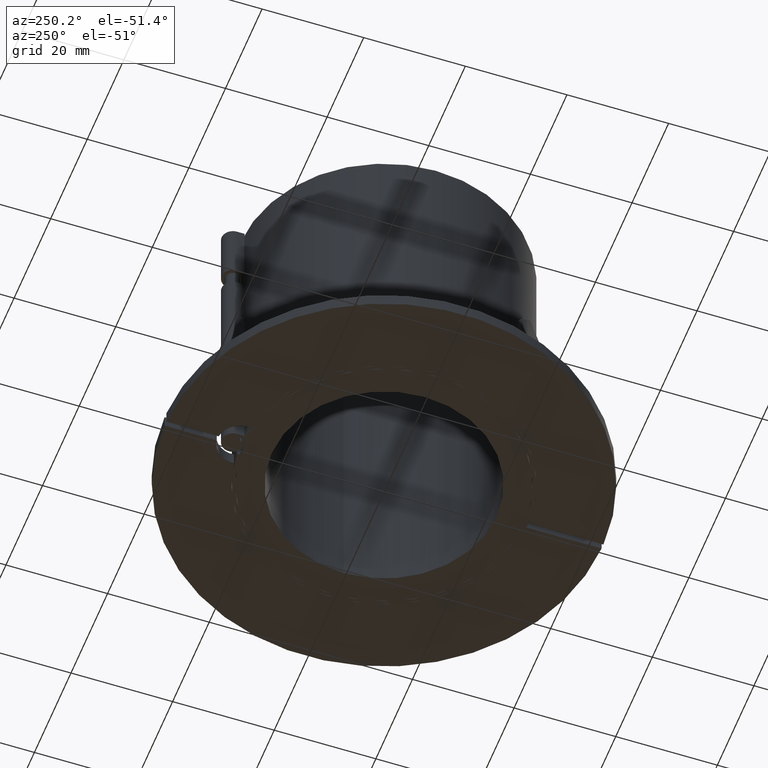
[diagram: clean part render]
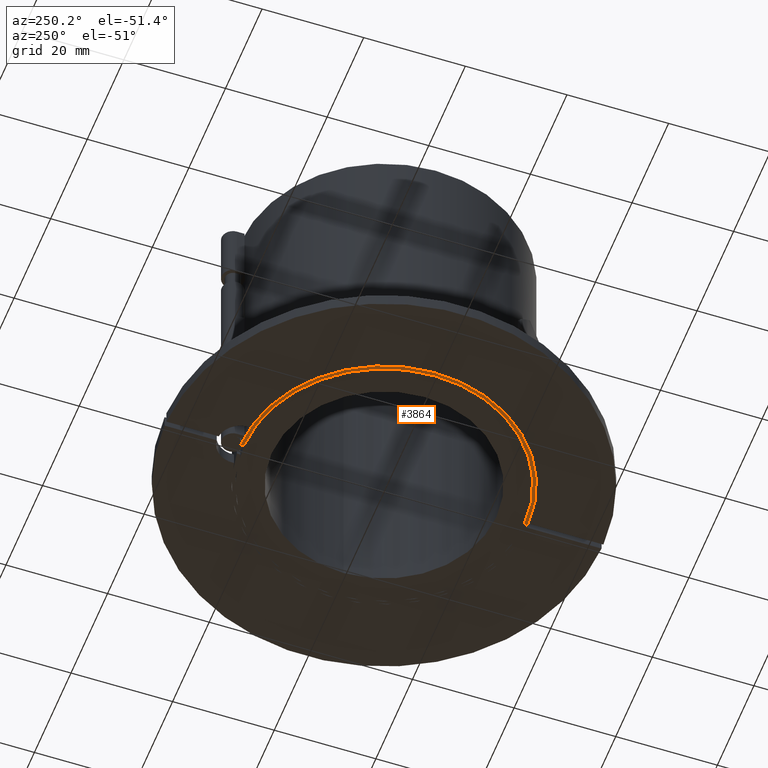
[diagram: same view with one face highlighted and labeled with its STEP entity id]
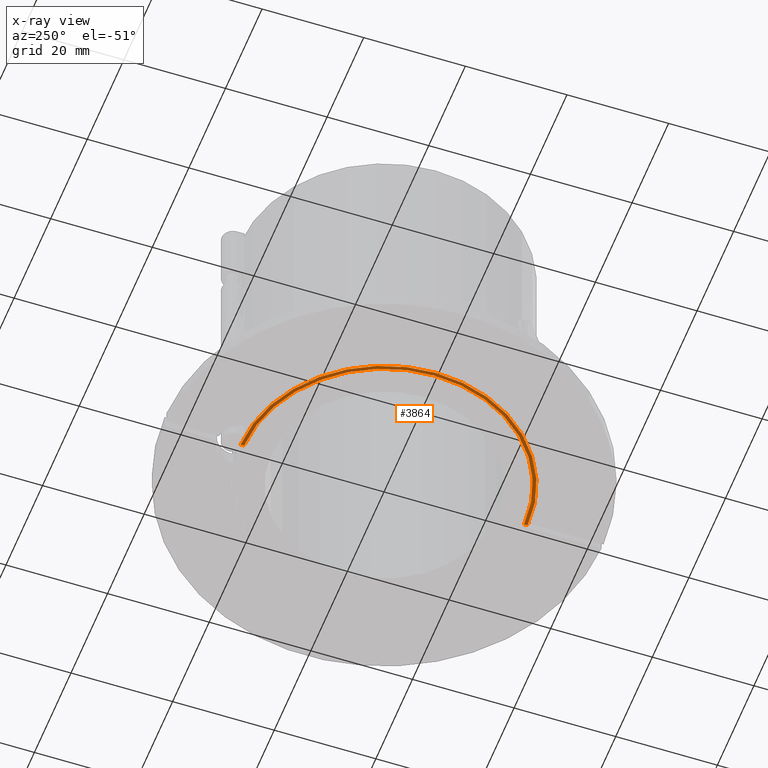
[diagram: x-ray of the same camera — body ghosted, the highlighted face saturated]
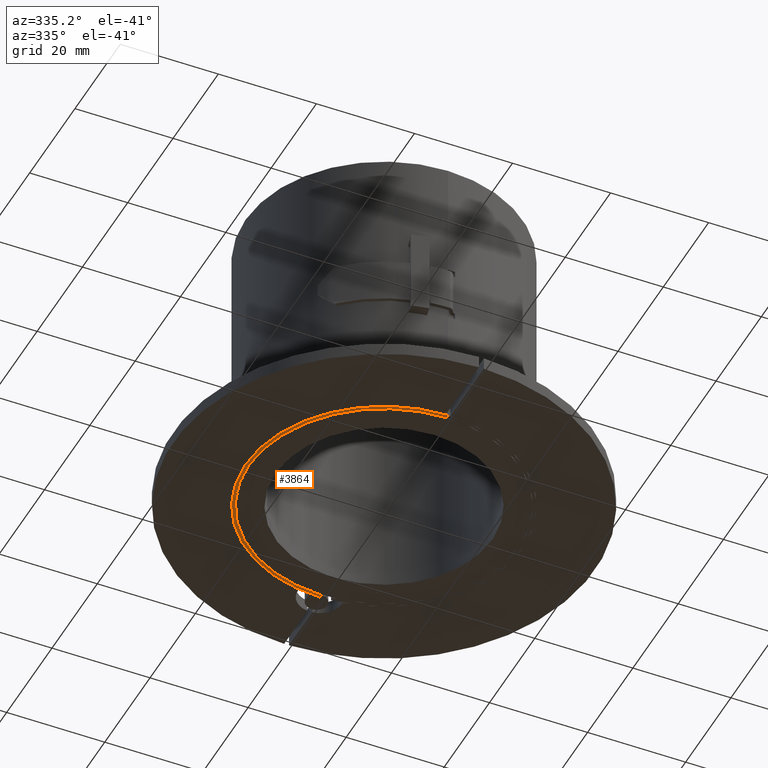
[diagram: same view with one face highlighted and labeled with its STEP entity id]
A machine part, auxiliary view. The second image highlights one B-rep face of the part: STEP entity #3864.
The next image is the same camera in x-ray: the body ghosted, the highlighted face saturated — about 0% of this face is hidden behind the body in this view.
A second angle (auxiliary view) of the same face is appended — the face is thin or edge-on in the first view.
In plain terms, the highlighted planar face has unit normal (0, 0, -1).
Its self-contained STEP definition (entity closure, byte-faithful):
#3089=CARTESIAN_POINT('',(1.913664E-013,-27.550000000000058,1.154632E-013));
#3090=VERTEX_POINT('',#3089);
#3097=CARTESIAN_POINT('',(9.840184E-014,27.549999999999947,1.154632E-013));
#3098=VERTEX_POINT('',#3097);
#3099=CARTESIAN_POINT('',(1.515454E-013,-5.558054E-014,1.154632E-013));
#3100=DIRECTION('',(0.0,0.0,1.0));
#3101=DIRECTION('',(0.0,1.0,0.0));
#3102=AXIS2_PLACEMENT_3D('',#3099,#3100,#3101);
#3103=CIRCLE('',#3102,27.550000000000004);
#3104=EDGE_CURVE('',#3098,#3090,#3103,.T.);
#3444=CARTESIAN_POINT('',(9.851842E-014,28.24999999999995,1.154632E-013));
#3445=VERTEX_POINT('',#3444);
#3452=CARTESIAN_POINT('',(1.912498E-013,-28.250000000000057,1.154632E-013));
#3453=VERTEX_POINT('',#3452);
#3454=CARTESIAN_POINT('',(1.515454E-013,-5.558054E-014,1.154632E-013));
#3455=DIRECTION('',(0.0,0.0,-1.0));
#3456=DIRECTION('',(0.0,-1.0,0.0));
#3457=AXIS2_PLACEMENT_3D('',#3454,#3455,#3456);
#3458=CIRCLE('',#3457,28.250000000000007);
#3459=EDGE_CURVE('',#3453,#3445,#3458,.T.);
#3814=CARTESIAN_POINT('',(9.753055E-014,28.249999999999947,1.154632E-013));
#3815=DIRECTION('',(0.0,-1.0,0.0));
#3816=VECTOR('',#3815,0.700000000000003);
#3817=LINE('',#3814,#3816);
#3818=EDGE_CURVE('',#3445,#3098,#3817,.T.);
#3848=CARTESIAN_POINT('',(9.460573E-014,28.24999999999995,1.154632E-013));
#3849=DIRECTION('',(0.0,0.0,-1.0));
#3850=DIRECTION('',(-1.0,0.0,0.0));
#3851=AXIS2_PLACEMENT_3D('',#3848,#3849,#3850);
#3852=PLANE('',#3851);
#3853=ORIENTED_EDGE('',*,*,#3818,.T.);
#3854=ORIENTED_EDGE('',*,*,#3104,.T.);
#3855=CARTESIAN_POINT('',(1.913664E-013,-27.550000000000058,1.154632E-013));
#3856=DIRECTION('',(0.0,-1.0,0.0));
#3857=VECTOR('',#3856,0.699999999999999);
#3858=LINE('',#3855,#3857);
#3859=EDGE_CURVE('',#3090,#3453,#3858,.T.);
#3860=ORIENTED_EDGE('',*,*,#3859,.T.);
#3861=ORIENTED_EDGE('',*,*,#3459,.T.);
#3862=EDGE_LOOP('',(#3853,#3854,#3860,#3861));
#3863=FACE_OUTER_BOUND('',#3862,.T.);
#3864=ADVANCED_FACE('',(#3863),#3852,.T.);